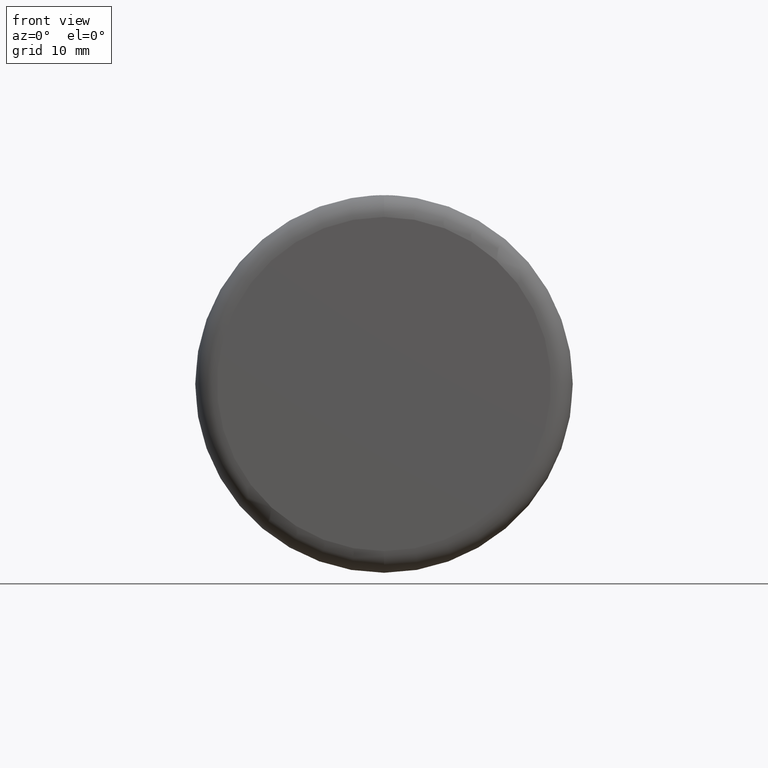
[diagram: clean part render]
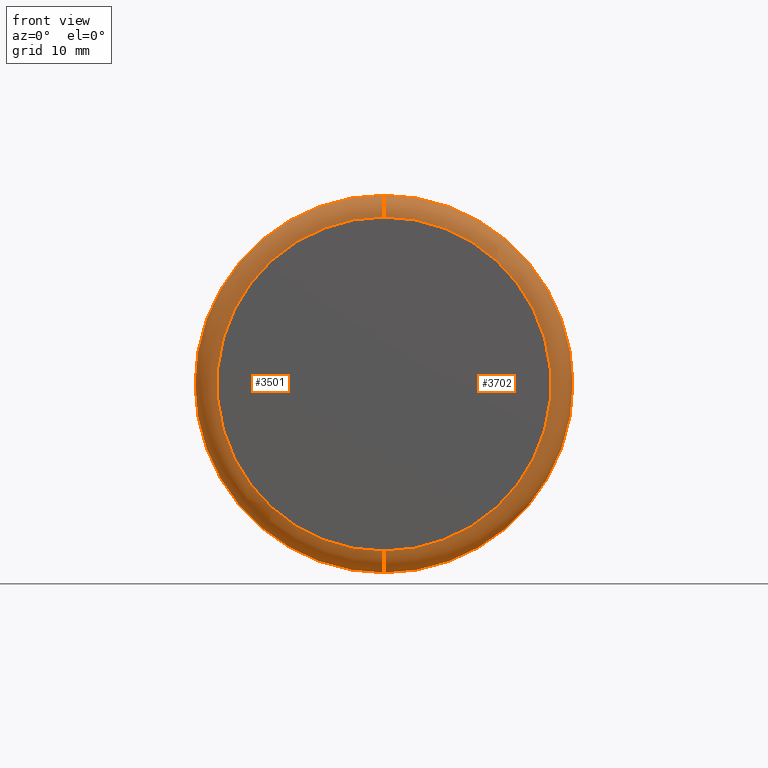
[diagram: same view with one multi-face feature highlighted, each face labeled with its STEP entity id]
A machine part, front view. The highlighted faces form ONE feature: a constant-radius fillet chain: 2 tangent blend faces with common blend radius 2.3616 mm. The faces share edges in the B-rep.
Their STEP definitions:
[1] entity #3702 (Torus):
#117 = VERTEX_POINT ( 'NONE', #4685 ) ;
#165 = CARTESIAN_POINT ( 'NONE',  ( 2.221313350165435200E-015, 2.361599999999998400, -18.13839999999999700 ) ) ;
#212 = EDGE_CURVE ( 'NONE', #4040, #1191, #739, .T. ) ;
#224 = DIRECTION ( 'NONE',  ( 0.0000000000000000000, 1.000000000000000000, 0.0000000000000000000 ) ) ;
#416 = ORIENTED_EDGE ( 'NONE', *, *, #4433, .T. ) ;
#473 = ORIENTED_EDGE ( 'NONE', *, *, #1282, .F. ) ;
#506 = DIRECTION ( 'NONE',  ( 1.224646799147353700E-016, 0.0000000000000000000, -1.000000000000000000 ) ) ;
#617 = CIRCLE ( 'NONE', #2366, 20.50000000000000000 ) ;
#739 = CIRCLE ( 'NONE', #3235, 18.13839999999999700 ) ;
#839 = CARTESIAN_POINT ( 'NONE',  ( 0.0000000000000000000, 0.0000000000000000000, 18.13839999999999700 ) ) ;
#927 = EDGE_CURVE ( 'NONE', #1191, #1145, #2325, .T. ) ;
#1044 = CARTESIAN_POINT ( 'NONE',  ( 0.0000000000000000000, 2.361599999999998400, 18.13839999999999700 ) ) ;
#1145 = VERTEX_POINT ( 'NONE', #2730 ) ;
#1191 = VERTEX_POINT ( 'NONE', #839 ) ;
#1282 = EDGE_CURVE ( 'NONE', #1145, #117, #617, .T. ) ;
#1424 = DIRECTION ( 'NONE',  ( 0.0000000000000000000, 0.0000000000000000000, 1.000000000000000000 ) ) ;
#1503 = AXIS2_PLACEMENT_3D ( 'NONE', #165, #4516, #506 ) ;
#1976 = ORIENTED_EDGE ( 'NONE', *, *, #212, .F. ) ;
#2027 = DIRECTION ( 'NONE',  ( 0.0000000000000000000, 0.0000000000000000000, 1.000000000000000000 ) ) ;
#2243 = DIRECTION ( 'NONE',  ( 0.0000000000000000000, 0.0000000000000000000, 1.000000000000000000 ) ) ;
#2325 = CIRCLE ( 'NONE', #4225, 2.361599999999998400 ) ;
#2366 = AXIS2_PLACEMENT_3D ( 'NONE', #4195, #224, #2027 ) ;
#2634 = ORIENTED_EDGE ( 'NONE', *, *, #927, .F. ) ;
#2730 = CARTESIAN_POINT ( 'NONE',  ( 0.0000000000000000000, 2.361599999999998400, 20.49999999999999600 ) ) ;
#2856 = CIRCLE ( 'NONE', #1503, 2.361599999999998400 ) ;
#3187 = CARTESIAN_POINT ( 'NONE',  ( 0.0000000000000000000, 2.361599999999998400, 0.0000000000000000000 ) ) ;
#3201 = FACE_OUTER_BOUND ( 'NONE', #4103, .T. ) ;
#3235 = AXIS2_PLACEMENT_3D ( 'NONE', #3661, #4421, #2243 ) ;
#3561 = DIRECTION ( 'NONE',  ( 0.0000000000000000000, 1.000000000000000000, 0.0000000000000000000 ) ) ;
#3566 = DIRECTION ( 'NONE',  ( 0.0000000000000000000, 0.0000000000000000000, 1.000000000000000000 ) ) ;
#3633 = AXIS2_PLACEMENT_3D ( 'NONE', #3187, #3561, #1424 ) ;
#3661 = CARTESIAN_POINT ( 'NONE',  ( 0.0000000000000000000, 0.0000000000000000000, 0.0000000000000000000 ) ) ;
#3702 = ADVANCED_FACE ( 'NONE', ( #3201 ), #4431, .T. ) ;
#3879 = DIRECTION ( 'NONE',  ( -1.000000000000000000, 0.0000000000000000000, 0.0000000000000000000 ) ) ;
#4040 = VERTEX_POINT ( 'NONE', #4514 ) ;
#4103 = EDGE_LOOP ( 'NONE', ( #1976, #416, #473, #2634 ) ) ;
#4195 = CARTESIAN_POINT ( 'NONE',  ( 0.0000000000000000000, 2.361599999999998400, 0.0000000000000000000 ) ) ;
#4225 = AXIS2_PLACEMENT_3D ( 'NONE', #1044, #3879, #3566 ) ;
#4421 = DIRECTION ( 'NONE',  ( -0.0000000000000000000, -1.000000000000000000, -0.0000000000000000000 ) ) ;
#4431 = TOROIDAL_SURFACE ( 'NONE', #3633, 18.13839999999999700, 2.361600000000000100 ) ;
#4433 = EDGE_CURVE ( 'NONE', #4040, #117, #2856, .T. ) ;
#4514 = CARTESIAN_POINT ( 'NONE',  ( 2.365919644208754400E-015, 0.0000000000000000000, -18.13839999999999700 ) ) ;
#4516 = DIRECTION ( 'NONE',  ( 1.000000000000000000, -0.0000000000000000000, 1.224646799147353200E-016 ) ) ;
#4685 = CARTESIAN_POINT ( 'NONE',  ( 2.510525938252074100E-015, 2.361599999999998400, -20.49999999999999600 ) ) ;
[2] entity #3501 (Torus):
#117 = VERTEX_POINT ( 'NONE', #4685 ) ;
#165 = CARTESIAN_POINT ( 'NONE',  ( 2.221313350165435200E-015, 2.361599999999998400, -18.13839999999999700 ) ) ;
#166 = DIRECTION ( 'NONE',  ( 0.0000000000000000000, 0.0000000000000000000, 1.000000000000000000 ) ) ;
#180 = DIRECTION ( 'NONE',  ( 0.0000000000000000000, 1.000000000000000000, 0.0000000000000000000 ) ) ;
#506 = DIRECTION ( 'NONE',  ( 1.224646799147353700E-016, 0.0000000000000000000, -1.000000000000000000 ) ) ;
#575 = AXIS2_PLACEMENT_3D ( 'NONE', #1287, #180, #166 ) ;
#598 = DIRECTION ( 'NONE',  ( 0.0000000000000000000, 0.0000000000000000000, 1.000000000000000000 ) ) ;
#719 = EDGE_CURVE ( 'NONE', #117, #1145, #1950, .T. ) ;
#746 = EDGE_CURVE ( 'NONE', #1191, #4040, #1263, .T. ) ;
#839 = CARTESIAN_POINT ( 'NONE',  ( 0.0000000000000000000, 0.0000000000000000000, 18.13839999999999700 ) ) ;
#927 = EDGE_CURVE ( 'NONE', #1191, #1145, #2325, .T. ) ;
#974 = ORIENTED_EDGE ( 'NONE', *, *, #746, .F. ) ;
#1044 = CARTESIAN_POINT ( 'NONE',  ( 0.0000000000000000000, 2.361599999999998400, 18.13839999999999700 ) ) ;
#1145 = VERTEX_POINT ( 'NONE', #2730 ) ;
#1191 = VERTEX_POINT ( 'NONE', #839 ) ;
#1258 = FACE_OUTER_BOUND ( 'NONE', #4667, .T. ) ;
#1263 = CIRCLE ( 'NONE', #2529, 18.13839999999999700 ) ;
#1287 = CARTESIAN_POINT ( 'NONE',  ( 0.0000000000000000000, 2.361599999999998400, 0.0000000000000000000 ) ) ;
#1503 = AXIS2_PLACEMENT_3D ( 'NONE', #165, #4516, #506 ) ;
#1824 = CARTESIAN_POINT ( 'NONE',  ( 0.0000000000000000000, 2.361599999999998400, 0.0000000000000000000 ) ) ;
#1950 = CIRCLE ( 'NONE', #575, 20.50000000000000000 ) ;
#2059 = CARTESIAN_POINT ( 'NONE',  ( 0.0000000000000000000, 0.0000000000000000000, 0.0000000000000000000 ) ) ;
#2107 = DIRECTION ( 'NONE',  ( -0.0000000000000000000, -1.000000000000000000, -0.0000000000000000000 ) ) ;
#2325 = CIRCLE ( 'NONE', #4225, 2.361599999999998400 ) ;
#2529 = AXIS2_PLACEMENT_3D ( 'NONE', #2059, #2107, #598 ) ;
#2563 = TOROIDAL_SURFACE ( 'NONE', #3178, 18.13839999999999700, 2.361600000000000100 ) ;
#2603 = ORIENTED_EDGE ( 'NONE', *, *, #927, .T. ) ;
#2730 = CARTESIAN_POINT ( 'NONE',  ( 0.0000000000000000000, 2.361599999999998400, 20.49999999999999600 ) ) ;
#2856 = CIRCLE ( 'NONE', #1503, 2.361599999999998400 ) ;
#3178 = AXIS2_PLACEMENT_3D ( 'NONE', #1824, #4051, #3663 ) ;
#3501 = ADVANCED_FACE ( 'NONE', ( #1258 ), #2563, .T. ) ;
#3566 = DIRECTION ( 'NONE',  ( 0.0000000000000000000, 0.0000000000000000000, 1.000000000000000000 ) ) ;
#3663 = DIRECTION ( 'NONE',  ( 0.0000000000000000000, 0.0000000000000000000, 1.000000000000000000 ) ) ;
#3879 = DIRECTION ( 'NONE',  ( -1.000000000000000000, 0.0000000000000000000, 0.0000000000000000000 ) ) ;
#4040 = VERTEX_POINT ( 'NONE', #4514 ) ;
#4051 = DIRECTION ( 'NONE',  ( 0.0000000000000000000, 1.000000000000000000, 0.0000000000000000000 ) ) ;
#4220 = ORIENTED_EDGE ( 'NONE', *, *, #4433, .F. ) ;
#4225 = AXIS2_PLACEMENT_3D ( 'NONE', #1044, #3879, #3566 ) ;
#4412 = ORIENTED_EDGE ( 'NONE', *, *, #719, .F. ) ;
#4433 = EDGE_CURVE ( 'NONE', #4040, #117, #2856, .T. ) ;
#4514 = CARTESIAN_POINT ( 'NONE',  ( 2.365919644208754400E-015, 0.0000000000000000000, -18.13839999999999700 ) ) ;
#4516 = DIRECTION ( 'NONE',  ( 1.000000000000000000, -0.0000000000000000000, 1.224646799147353200E-016 ) ) ;
#4667 = EDGE_LOOP ( 'NONE', ( #4220, #974, #2603, #4412 ) ) ;
#4685 = CARTESIAN_POINT ( 'NONE',  ( 2.510525938252074100E-015, 2.361599999999998400, -20.49999999999999600 ) ) ;